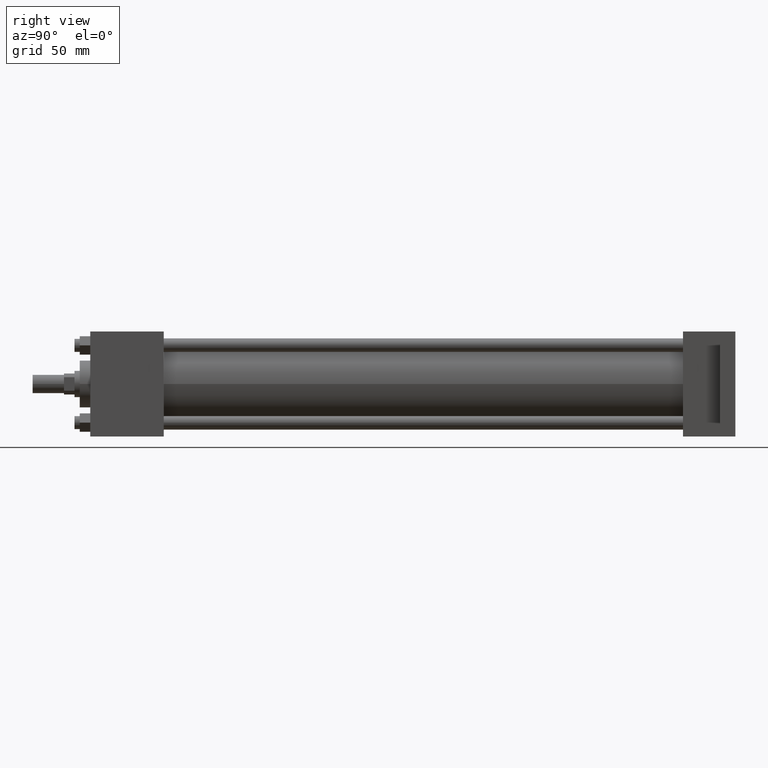
[diagram: clean part render]
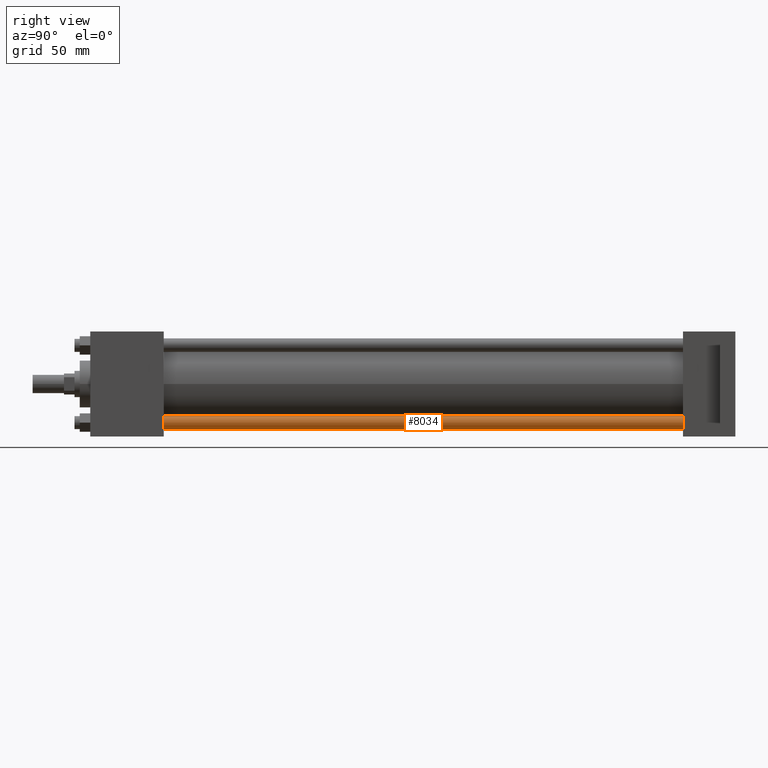
[diagram: same view with one face highlighted and labeled with its STEP entity id]
A machine part, right view. The second image highlights one B-rep face of the part: STEP entity #8034.
In plain terms, the highlighted cylindrical surface (bore or boss wall) has radius 3.9688 mm, axis along (0, -1, 0).
Its self-contained STEP definition (entity closure, byte-faithful):
#527=EDGE_CURVE('',#533,#533,#528,.T.);
#528=CIRCLE('',#529,3.968750000E+000);
#529=AXIS2_PLACEMENT_3D('',#530,#531,#532);
#530=CARTESIAN_POINT('',(2.336800000E+001,6.032500000E+001,-2.336800000E+001));
#531=DIRECTION('',(0.0E+000,1.0E+000,0.0E+000));
#532=DIRECTION('',(1.0E+000,0.0E+000,0.0E+000));
#533=VERTEX_POINT('',#534);
#534=CARTESIAN_POINT('',(2.733675000E+001,6.032500000E+001,-2.336800000E+001));
#2386=FACE_OUTER_BOUND('',#2388,.T.);
#2387=FACE_BOUND('',#2389,.T.);
#2388=EDGE_LOOP('',(#2390));
#2389=EDGE_LOOP('',(#2391));
#2390=ORIENTED_EDGE('',*,*,#2440,.F.);
#2391=ORIENTED_EDGE('',*,*,#527,.T.);
#2392=CYLINDRICAL_SURFACE('',#2393,3.968750000E+000);
#2393=AXIS2_PLACEMENT_3D('',#2394,#2395,#2396);
#2394=CARTESIAN_POINT('',(2.336800000E+001,3.746500000E+002,-2.336800000E+001));
#2395=DIRECTION('',(0.0E+000,-1.0E+000,0.0E+000));
#2396=DIRECTION('',(0.0E+000,0.0E+000,-1.0E+000));
#2440=EDGE_CURVE('',#2446,#2446,#2441,.T.);
#2441=CIRCLE('',#2442,3.968750000E+000);
#2442=AXIS2_PLACEMENT_3D('',#2443,#2444,#2445);
#2443=CARTESIAN_POINT('',(2.336800000E+001,3.746500000E+002,-2.336800000E+001));
#2444=DIRECTION('',(0.0E+000,1.0E+000,0.0E+000));
#2445=DIRECTION('',(1.0E+000,0.0E+000,0.0E+000));
#2446=VERTEX_POINT('',#2447);
#2447=CARTESIAN_POINT('',(2.733675000E+001,3.746500000E+002,-2.336800000E+001));
#8034=ADVANCED_FACE('',(#2386,#2387),#2392,.T.);